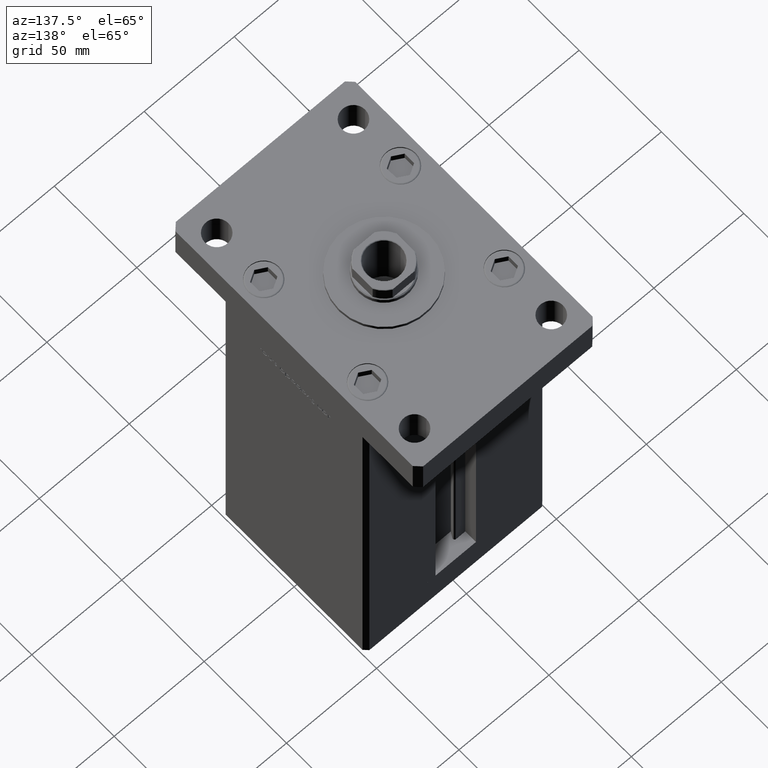
[diagram: clean part render]
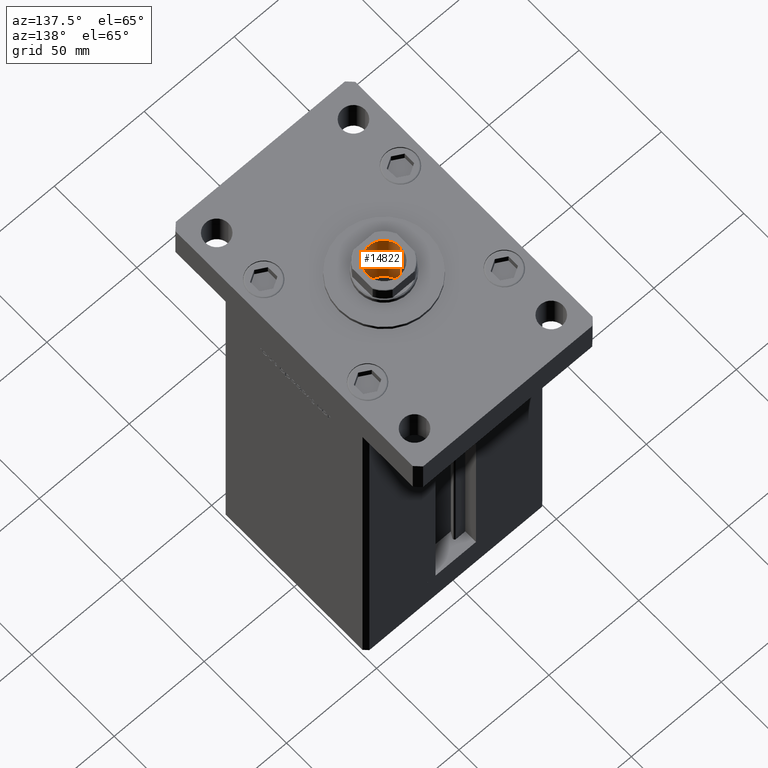
[diagram: same view with one face highlighted and labeled with its STEP entity id]
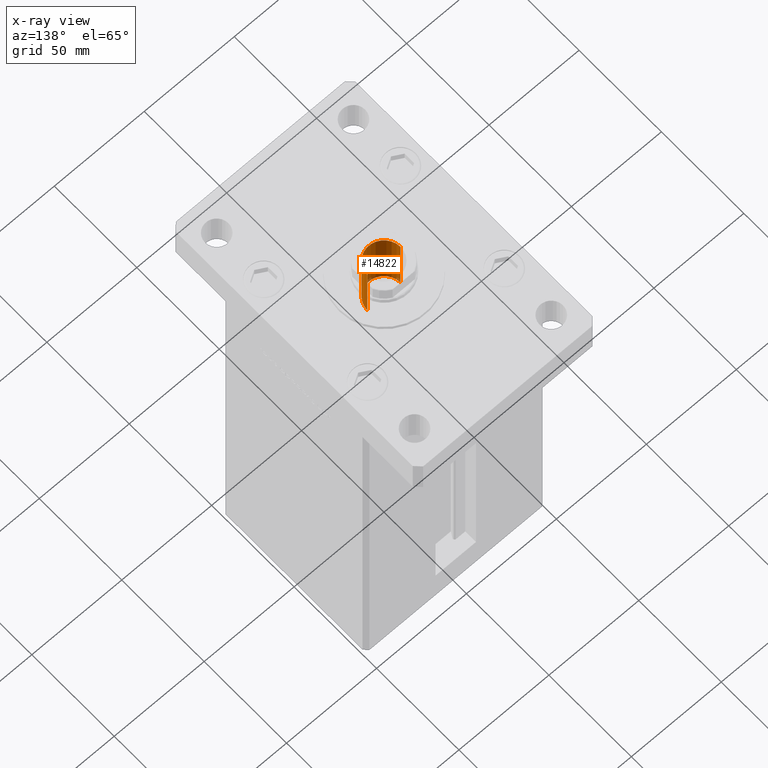
[diagram: x-ray of the same camera — body ghosted, the highlighted face saturated]
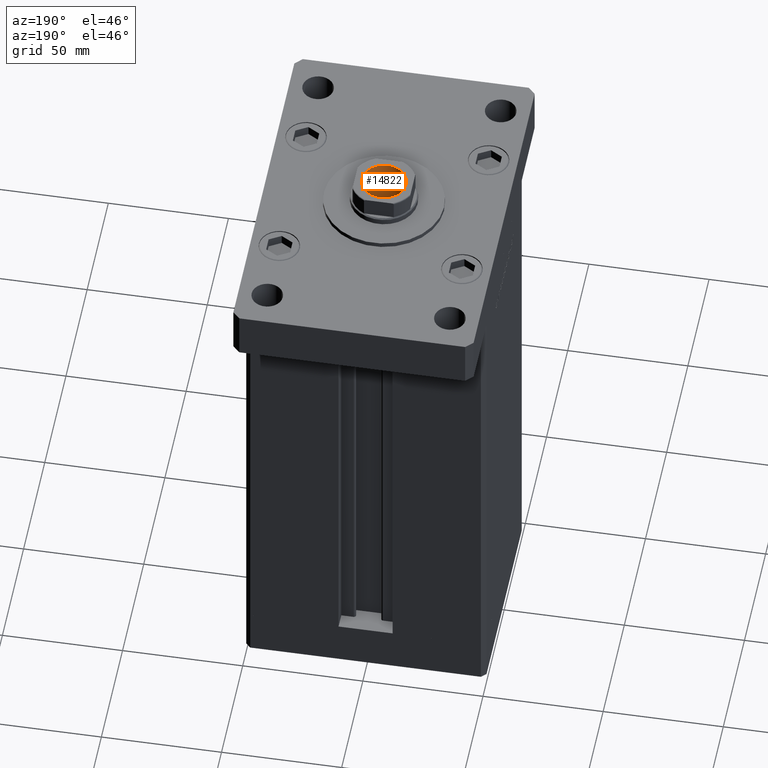
[diagram: same view with one face highlighted and labeled with its STEP entity id]
A machine part, auxiliary view. The second image highlights one B-rep face of the part: STEP entity #14822.
The next image is the same camera in x-ray: the body ghosted, the highlighted face saturated — about 2% of this face is hidden behind the body in this view.
A second angle (auxiliary view) of the same face is appended — the face is thin or edge-on in the first view.
In plain terms, the highlighted cylindrical surface (edge-blend (fillet) strip) has radius 9.25 mm, axis along (0, 0, 1).
Its self-contained STEP definition (entity closure, byte-faithful):
#789 = LINE ( 'NONE', #23420, #4139 ) ;
#1017 = CARTESIAN_POINT ( 'NONE',  ( -9.249999999999994671, 1.132798289211300909E-15, 170.2500000000000000 ) ) ;
#4139 = VECTOR ( 'NONE', #14424, 1000.000000000000000 ) ;
#6978 = VERTEX_POINT ( 'NONE', #1017 ) ;
#7176 = VECTOR ( 'NONE', #42343, 1000.000000000000000 ) ;
#7470 = CARTESIAN_POINT ( 'NONE',  ( 0.000000000000000000, 0.000000000000000000, 205.2500000000000284 ) ) ;
#8541 = LINE ( 'NONE', #21909, #7176 ) ;
#9201 = ORIENTED_EDGE ( 'NONE', *, *, #27388, .F. ) ;
#9930 = CARTESIAN_POINT ( 'NONE',  ( 0.000000000000000000, 0.000000000000000000, 170.2500000000000000 ) ) ;
#11299 = CYLINDRICAL_SURFACE ( 'NONE', #29762, 9.249999999999996447 ) ;
#11640 = ORIENTED_EDGE ( 'NONE', *, *, #41302, .F. ) ;
#12563 = CIRCLE ( 'NONE', #22151, 9.249999999999996447 ) ;
#12756 = VERTEX_POINT ( 'NONE', #53551 ) ;
#14424 = DIRECTION ( 'NONE',  ( -0.000000000000000000, -0.000000000000000000, 1.000000000000000000 ) ) ;
#14822 = ADVANCED_FACE ( 'NONE', ( #53795 ), #11299, .F. ) ;
#15771 = EDGE_CURVE ( 'NONE', #6978, #33001, #8541, .T. ) ;
#16786 = DIRECTION ( 'NONE',  ( 0.000000000000000000, 0.000000000000000000, 1.000000000000000000 ) ) ;
#17835 = AXIS2_PLACEMENT_3D ( 'NONE', #9930, #42378, #38274 ) ;
#18664 = VERTEX_POINT ( 'NONE', #50875 ) ;
#21679 = CARTESIAN_POINT ( 'NONE',  ( 0.000000000000000000, 0.000000000000000000, 204.9500000000000455 ) ) ;
#21909 = CARTESIAN_POINT ( 'NONE',  ( -9.249999999999996447, 1.132798289211301304E-15, 205.2500000000000284 ) ) ;
#22151 = AXIS2_PLACEMENT_3D ( 'NONE', #21679, #16786, #38280 ) ;
#23420 = CARTESIAN_POINT ( 'NONE',  ( 9.249999999999996447, 0.000000000000000000, 205.2500000000000284 ) ) ;
#26837 = ORIENTED_EDGE ( 'NONE', *, *, #15771, .T. ) ;
#27388 = EDGE_CURVE ( 'NONE', #6978, #12756, #30855, .T. ) ;
#27917 = DIRECTION ( 'NONE',  ( 1.000000000000000000, 0.000000000000000000, 0.000000000000000000 ) ) ;
#29762 = AXIS2_PLACEMENT_3D ( 'NONE', #7470, #53536, #27917 ) ;
#30509 = EDGE_LOOP ( 'NONE', ( #9201, #26837, #48651, #11640 ) ) ;
#30855 = CIRCLE ( 'NONE', #17835, 9.249999999999994671 ) ;
#31624 = EDGE_CURVE ( 'NONE', #33001, #18664, #12563, .T. ) ;
#33001 = VERTEX_POINT ( 'NONE', #53817 ) ;
#38274 = DIRECTION ( 'NONE',  ( 1.000000000000000000, 0.000000000000000000, 0.000000000000000000 ) ) ;
#38280 = DIRECTION ( 'NONE',  ( 1.000000000000000000, 0.000000000000000000, 0.000000000000000000 ) ) ;
#41302 = EDGE_CURVE ( 'NONE', #12756, #18664, #789, .T. ) ;
#42343 = DIRECTION ( 'NONE',  ( -0.000000000000000000, -0.000000000000000000, 1.000000000000000000 ) ) ;
#42378 = DIRECTION ( 'NONE',  ( -0.000000000000000000, -0.000000000000000000, 1.000000000000000000 ) ) ;
#48651 = ORIENTED_EDGE ( 'NONE', *, *, #31624, .T. ) ;
#50875 = CARTESIAN_POINT ( 'NONE',  ( 9.249999999999996447, 0.000000000000000000, 204.9500000000000455 ) ) ;
#53536 = DIRECTION ( 'NONE',  ( -0.000000000000000000, -0.000000000000000000, 1.000000000000000000 ) ) ;
#53551 = CARTESIAN_POINT ( 'NONE',  ( 9.249999999999994671, 0.000000000000000000, 170.2500000000000000 ) ) ;
#53795 = FACE_OUTER_BOUND ( 'NONE', #30509, .T. ) ;
#53817 = CARTESIAN_POINT ( 'NONE',  ( -9.249999999999996447, 1.132798289211301304E-15, 204.9500000000000455 ) ) ;